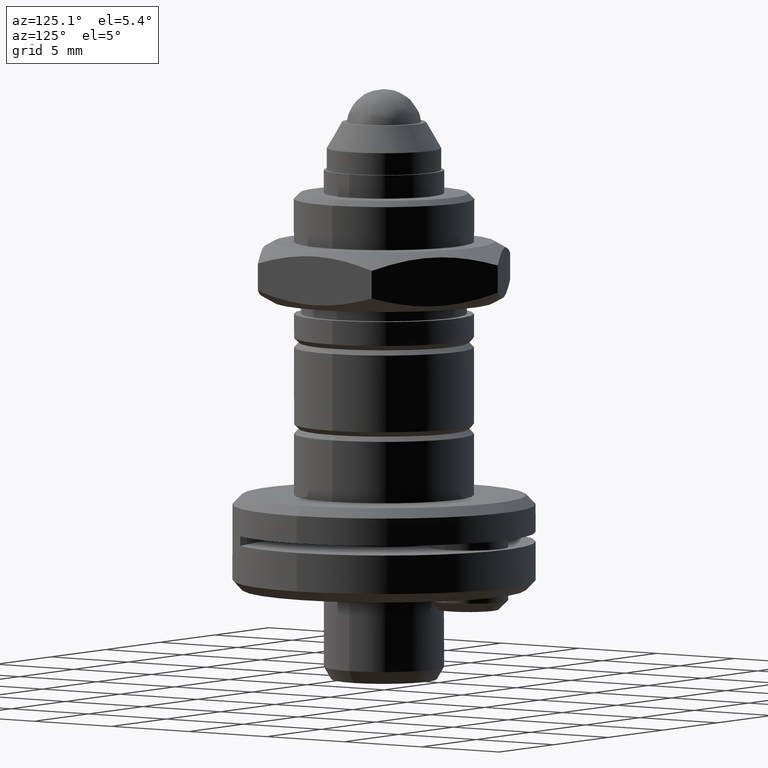
[diagram: clean part render]
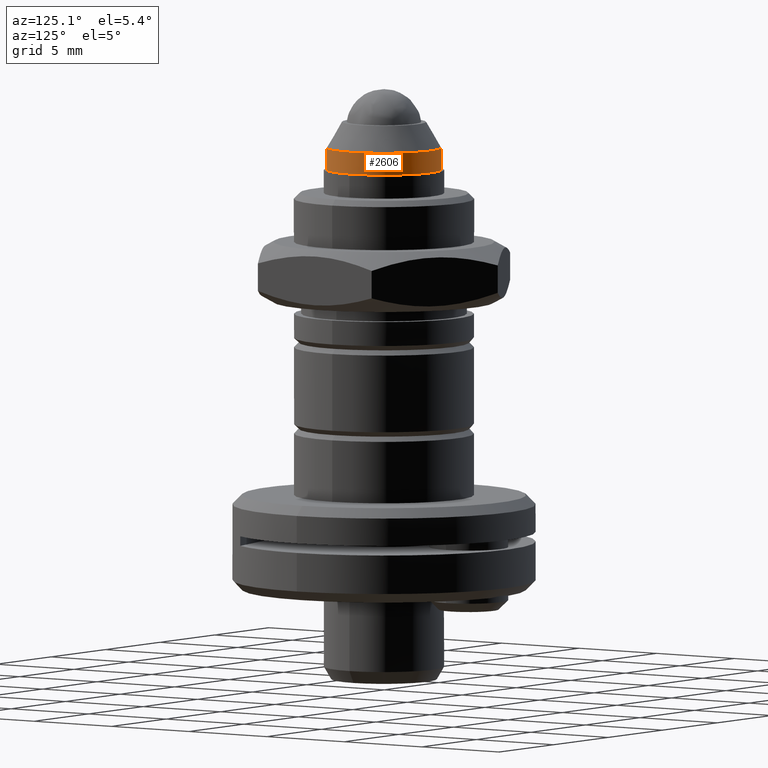
[diagram: same view with one face highlighted and labeled with its STEP entity id]
A machine part, auxiliary view. The second image highlights one B-rep face of the part: STEP entity #2606.
In plain terms, the highlighted cylindrical surface (bore or boss wall) has radius 3.0188 mm, axis along (0, 0, -1).
Its self-contained STEP definition (entity closure, byte-faithful):
#28 = CIRCLE ( 'NONE', #1239, 3.018789999999999640 ) ;
#102 = FACE_OUTER_BOUND ( 'NONE', #785, .T. ) ;
#148 = EDGE_LOOP ( 'NONE', ( #2583 ) ) ;
#222 = DIRECTION ( 'NONE',  ( 0.000000000000000000, 0.000000000000000000, -1.000000000000000000 ) ) ;
#229 = EDGE_CURVE ( 'NONE', #1991, #1991, #978, .T. ) ;
#287 = AXIS2_PLACEMENT_3D ( 'NONE', #1529, #2393, #2348 ) ;
#345 = DIRECTION ( 'NONE',  ( -1.000000000000000000, 0.000000000000000000, 0.000000000000000000 ) ) ;
#570 = DIRECTION ( 'NONE',  ( 0.000000000000000000, 0.000000000000000000, -1.000000000000000000 ) ) ;
#598 = CARTESIAN_POINT ( 'NONE',  ( -3.018789999999999640, 0.000000000000000000, -3.106414737559419770 ) ) ;
#606 = EDGE_CURVE ( 'NONE', #805, #805, #28, .T. ) ;
#785 = EDGE_LOOP ( 'NONE', ( #2149 ) ) ;
#805 = VERTEX_POINT ( 'NONE', #598 ) ;
#831 = DIRECTION ( 'NONE',  ( -1.000000000000000000, 0.000000000000000000, 0.000000000000000000 ) ) ;
#978 = CIRCLE ( 'NONE', #2286, 3.018789999999999640 ) ;
#1239 = AXIS2_PLACEMENT_3D ( 'NONE', #2421, #570, #345 ) ;
#1256 = CARTESIAN_POINT ( 'NONE',  ( 0.000000000000000000, 0.000000000000000000, -4.267200000000000770 ) ) ;
#1388 = CARTESIAN_POINT ( 'NONE',  ( -3.018789999999999640, 0.000000000000000000, -4.267200000000000770 ) ) ;
#1529 = CARTESIAN_POINT ( 'NONE',  ( 0.000000000000000000, 0.000000000000000000, -1.981199999999999850 ) ) ;
#1954 = FACE_OUTER_BOUND ( 'NONE', #148, .T. ) ;
#1991 = VERTEX_POINT ( 'NONE', #1388 ) ;
#2149 = ORIENTED_EDGE ( 'NONE', *, *, #606, .T. ) ;
#2286 = AXIS2_PLACEMENT_3D ( 'NONE', #1256, #222, #831 ) ;
#2348 = DIRECTION ( 'NONE',  ( -1.000000000000000000, 0.000000000000000000, 0.000000000000000000 ) ) ;
#2393 = DIRECTION ( 'NONE',  ( 0.000000000000000000, 0.000000000000000000, -1.000000000000000000 ) ) ;
#2421 = CARTESIAN_POINT ( 'NONE',  ( 0.000000000000000000, 0.000000000000000000, -3.106414737559419770 ) ) ;
#2541 = CYLINDRICAL_SURFACE ( 'NONE', #287, 3.018789999999999640 ) ;
#2583 = ORIENTED_EDGE ( 'NONE', *, *, #229, .F. ) ;
#2606 = ADVANCED_FACE ( 'NONE', ( #1954, #102 ), #2541, .T. ) ;